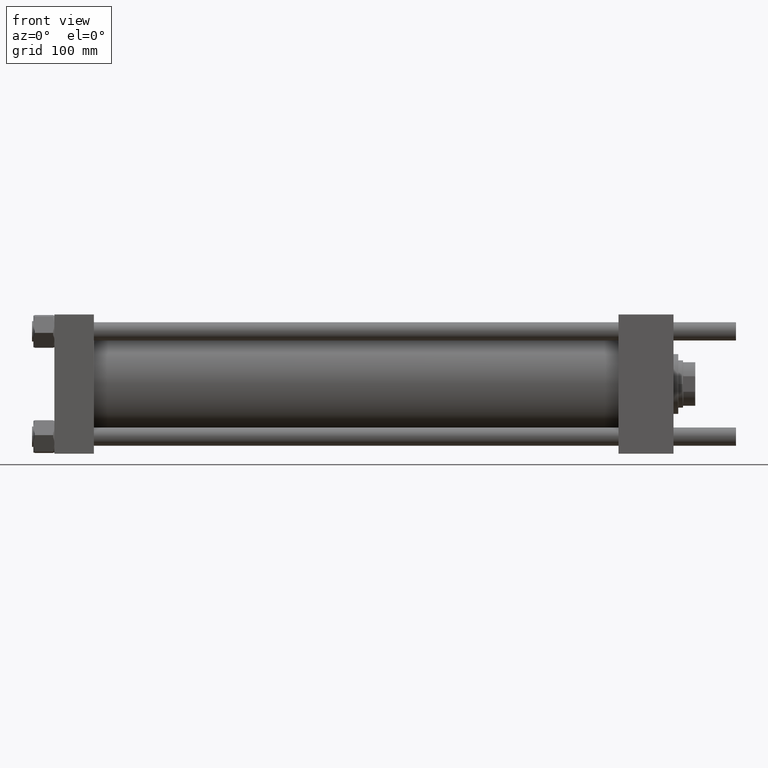
[diagram: clean part render]
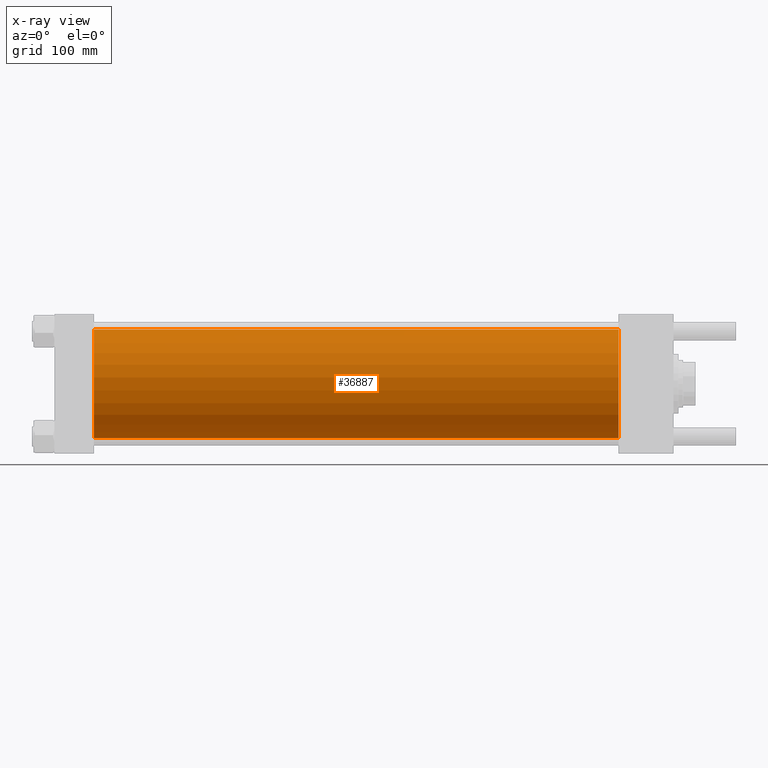
[diagram: x-ray — body ghosted, one internal face saturated and labeled with its STEP entity id]
A machine part, front view, then the same camera in x-ray: the body is ghosted and one INTERNAL B-rep face — a face not visible from any outside direction — is saturated and labeled: STEP entity #36887.
In plain terms, the highlighted cylindrical surface (partial cylindrical patch) has radius 80 mm, axis along (-1, -0, -0).
Its self-contained STEP definition (entity closure, byte-faithful):
#1858 = DIRECTION ( 'NONE',  ( -1.000000000000000000, -0.000000000000000000, -0.000000000000000000 ) ) ;
#3241 = AXIS2_PLACEMENT_3D ( 'NONE', #13345, #17702, #9287 ) ;
#3772 = CIRCLE ( 'NONE', #53818, 80.00000000000000000 ) ;
#4931 = VECTOR ( 'NONE', #16735, 1000.000000000000000 ) ;
#7141 = EDGE_CURVE ( 'NONE', #12411, #38042, #3772, .T. ) ;
#9287 = DIRECTION ( 'NONE',  ( 0.000000000000000000, 0.000000000000000000, -1.000000000000000000 ) ) ;
#9663 = ORIENTED_EDGE ( 'NONE', *, *, #20011, .T. ) ;
#12052 = VERTEX_POINT ( 'NONE', #16619 ) ;
#12385 = LINE ( 'NONE', #30077, #4931 ) ;
#12411 = VERTEX_POINT ( 'NONE', #30109 ) ;
#13345 = CARTESIAN_POINT ( 'NONE',  ( 830.0000000000001137, -2.602085213965210642E-15, 0.000000000000000000 ) ) ;
#16516 = CARTESIAN_POINT ( 'NONE',  ( 58.00000000000000000, -2.602085213965210642E-15, 0.000000000000000000 ) ) ;
#16619 = CARTESIAN_POINT ( 'NONE',  ( 830.0000000000001137, 7.195089179213615410E-15, -80.00000000000000000 ) ) ;
#16653 = ORIENTED_EDGE ( 'NONE', *, *, #46619, .F. ) ;
#16735 = DIRECTION ( 'NONE',  ( -1.000000000000000000, -0.000000000000000000, -0.000000000000000000 ) ) ;
#17702 = DIRECTION ( 'NONE',  ( 1.000000000000000000, 0.000000000000000000, 0.000000000000000000 ) ) ;
#20011 = EDGE_CURVE ( 'NONE', #24610, #12052, #27300, .T. ) ;
#20868 = CYLINDRICAL_SURFACE ( 'NONE', #50879, 80.00000000000000000 ) ;
#21729 = DIRECTION ( 'NONE',  ( 0.000000000000000000, 0.000000000000000000, -1.000000000000000000 ) ) ;
#24377 = CARTESIAN_POINT ( 'NONE',  ( 830.0000000000001137, -2.602085213965210642E-15, 0.000000000000000000 ) ) ;
#24610 = VERTEX_POINT ( 'NONE', #48919 ) ;
#25427 = ORIENTED_EDGE ( 'NONE', *, *, #49840, .T. ) ;
#27300 = CIRCLE ( 'NONE', #3241, 80.00000000000000000 ) ;
#30077 = CARTESIAN_POINT ( 'NONE',  ( 830.0000000000001137, 7.195089179213615410E-15, -80.00000000000000000 ) ) ;
#30109 = CARTESIAN_POINT ( 'NONE',  ( 58.00000000000000000, -2.602085213965210642E-15, 80.00000000000000000 ) ) ;
#32056 = EDGE_LOOP ( 'NONE', ( #9663, #25427, #39597, #16653 ) ) ;
#36887 = ADVANCED_FACE ( 'NONE', ( #46081 ), #20868, .F. ) ;
#37353 = CARTESIAN_POINT ( 'NONE',  ( 58.00000000000000000, 7.195089179213615410E-15, -80.00000000000000000 ) ) ;
#38042 = VERTEX_POINT ( 'NONE', #37353 ) ;
#38815 = DIRECTION ( 'NONE',  ( 1.000000000000000000, 0.000000000000000000, 0.000000000000000000 ) ) ;
#39597 = ORIENTED_EDGE ( 'NONE', *, *, #7141, .F. ) ;
#44992 = LINE ( 'NONE', #50201, #45453 ) ;
#45453 = VECTOR ( 'NONE', #1858, 1000.000000000000000 ) ;
#46081 = FACE_OUTER_BOUND ( 'NONE', #32056, .T. ) ;
#46619 = EDGE_CURVE ( 'NONE', #24610, #12411, #44992, .T. ) ;
#48919 = CARTESIAN_POINT ( 'NONE',  ( 830.0000000000001137, -2.602085213965210642E-15, 80.00000000000000000 ) ) ;
#49840 = EDGE_CURVE ( 'NONE', #12052, #38042, #12385, .T. ) ;
#50201 = CARTESIAN_POINT ( 'NONE',  ( 830.0000000000001137, -2.602085213965210642E-15, 80.00000000000000000 ) ) ;
#50879 = AXIS2_PLACEMENT_3D ( 'NONE', #24377, #51271, #55340 ) ;
#51271 = DIRECTION ( 'NONE',  ( -1.000000000000000000, -0.000000000000000000, -0.000000000000000000 ) ) ;
#53818 = AXIS2_PLACEMENT_3D ( 'NONE', #16516, #38815, #21729 ) ;
#55340 = DIRECTION ( 'NONE',  ( 0.000000000000000000, 0.000000000000000000, 1.000000000000000000 ) ) ;